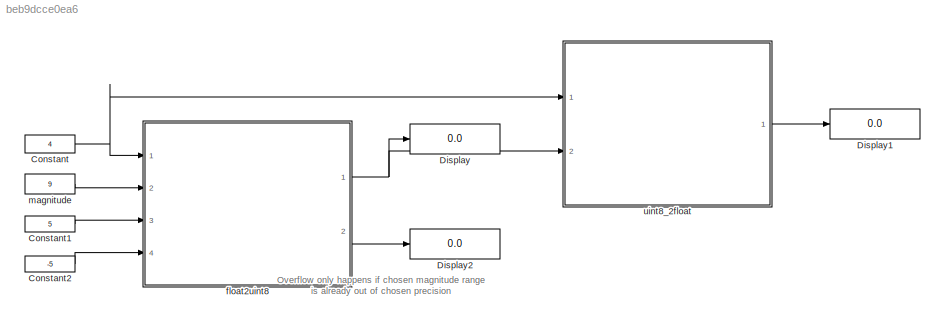
MODEL slx_beb9dcce0ea6
KIND model
CONFIG AbsTol = auto
CONFIG EnableMultiTasking = off
CONFIG FixedStep = auto
CONFIG MaxStep = auto
CONFIG MinStep = auto
CONFIG RelTol = 1e-3
CONFIG SampleTimeConstraint = Unconstrained
CONFIG Solver = FixedStepAuto
CONFIG SolverName = FixedStepAuto
CONFIG StartTime = 0.0
CONFIG StopTime = 10.0
WORKSPACE source: MAT-file member
WORKSPACE precision = 4
BLOCK [Constant] Constant
  Value = 4
BLOCK [Constant] Constant1
  Value = 5
BLOCK [Constant] Constant2
  Value = -5
BLOCK [Display] Display
  Decimation = 1
  Ports = [1]
BLOCK [Display] Display1
  Decimation = 1
  Ports = [1]
BLOCK [Display] Display2
  Decimation = 1
  Ports = [1]
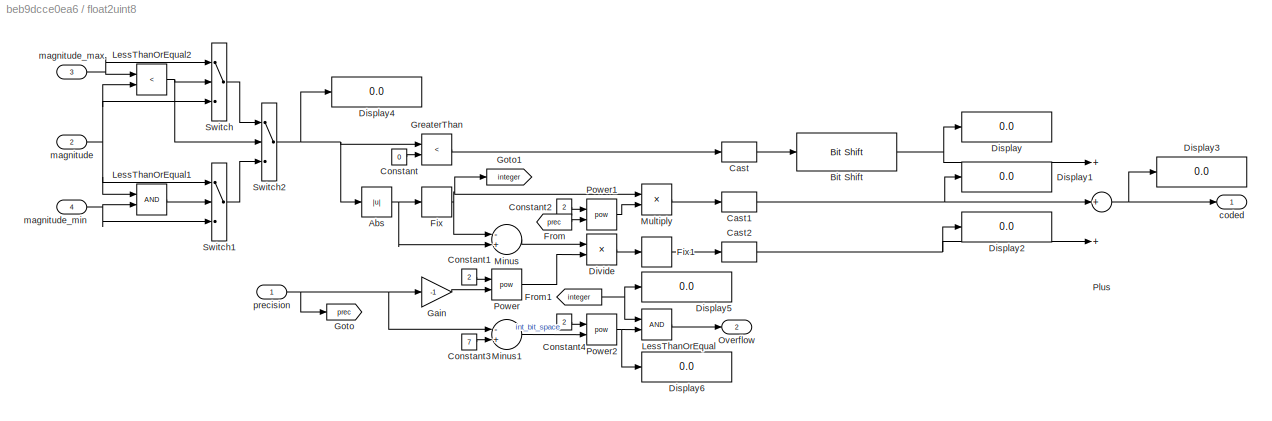
BLOCK [SubSystem] float2uint8
  Ports = [4, 2]
  RequestExecContextInheritance = off
BLOCK [Abs] float2uint8/Abs
  SaturateOnIntegerOverflow = off
BLOCK [Reference] float2uint8/Bit Shift  REF=hdlsllib/Logic and Bit
Operations/Bit Shift
  Ports = [1, 1]
  SourceBlock = hdlsllib/Logic and Bit\nOperations/Bit Shift
  SourceProductBaseCode = HD
  SourceProductName = HDL Coder
  SourceType = Bit Shift
BLOCK [DataTypeConversion] float2uint8/Cast
  OutDataTypeStr = uint8
  RndMeth = Floor
  SaturateOnIntegerOverflow = off
BLOCK [DataTypeConversion] float2uint8/Cast1
  OutDataTypeStr = uint8
  RndMeth = Floor
  SaturateOnIntegerOverflow = off
BLOCK [DataTypeConversion] float2uint8/Cast2
  OutDataTypeStr = uint8
  RndMeth = Floor
  SaturateOnIntegerOverflow = off
BLOCK [Constant] float2uint8/Constant
  Value = 0
BLOCK [Constant] float2uint8/Constant1
  Value = 2
BLOCK [Constant] float2uint8/Constant2
  Value = 2
BLOCK [Constant] float2uint8/Constant3
  Value = 7
BLOCK [Constant] float2uint8/Constant4
  Value = 2
BLOCK [Display] float2uint8/Display
  Decimation = 1
  Ports = [1]
BLOCK [Display] float2uint8/Display1
  Decimation = 1
  Ports = [1]
BLOCK [Display] float2uint8/Display2
  Decimation = 1
  Ports = [1]
BLOCK [Display] float2uint8/Display3
  Decimation = 1
  Ports = [1]
BLOCK [Display] float2uint8/Display4
  Decimation = 1
  Ports = [1]
BLOCK [Display] float2uint8/Display5
  Decimation = 1
  Ports = [1]
BLOCK [Display] float2uint8/Display6
  Decimation = 1
  Ports = [1]
BLOCK [Product] float2uint8/Divide
  InputSameDT = off
  Inputs = */
  OutDataTypeStr = Inherit: Inherit via internal rule
  Ports = [2, 1]
  RndMeth = Floor
  SaturateOnIntegerOverflow = off
BLOCK [Rounding] float2uint8/Fix
  Operator = fix
  Priority = 3
BLOCK [Rounding] float2uint8/Fix1
  Operator = fix
  Priority = 6
BLOCK [From] float2uint8/From
  GotoTag = prec
BLOCK [From] float2uint8/From1
  GotoTag = integer
BLOCK [Gain] float2uint8/Gain
  Gain = -1
  OutDataTypeStr = Inherit: Inherit via internal rule
  ParamDataTypeStr = Inherit: Inherit via internal rule
  SaturateOnIntegerOverflow = off
BLOCK [Goto] float2uint8/Goto
  GotoTag = prec
BLOCK [Goto] float2uint8/Goto1
  GotoTag = integer
BLOCK [RelationalOperator] float2uint8/GreaterThan
  InputSameDT = off
  Operator = <
  OutDataTypeStr = boolean
  Ports = [2, 1]
  Priority = 2
  RndMeth = Simplest
BLOCK [RelationalOperator] float2uint8/LessThanOrEqual
  InputSameDT = off
  OutDataTypeStr = boolean
  Ports = [2, 1]
  RndMeth = Simplest
BLOCK [RelationalOperator] float2uint8/LessThanOrEqual1
  InputSameDT = off
  OutDataTypeStr = boolean
  Ports = [2, 1]
  RndMeth = Simplest
BLOCK [RelationalOperator] float2uint8/LessThanOrEqual2
  InputSameDT = off
  Operator = <
  OutDataTypeStr = boolean
  Ports = [2, 1]
  RndMeth = Simplest
BLOCK [Sum] float2uint8/Minus
  InputSameDT = off
  Inputs = -+
  OutDataTypeStr = Inherit: Inherit via internal rule
  Ports = [2, 1]
  Priority = 4
  SaturateOnIntegerOverflow = off
BLOCK [Sum] float2uint8/Minus1
  InputSameDT = off
  Inputs = -+
  OutDataTypeStr = Inherit: Inherit via internal rule
  Ports = [2, 1]
  Priority = 4
  SaturateOnIntegerOverflow = off
BLOCK [Product] float2uint8/Multiply
  InputSameDT = off
  OutDataTypeStr = Inherit: Inherit via internal rule
  Ports = [2, 1]
  RndMeth = Floor
  SaturateOnIntegerOverflow = off
BLOCK [Outport] float2uint8/Overflow
  IconDisplay = Port number
  Port = 2
BLOCK [Sum] float2uint8/Plus
  InputSameDT = off
  Inputs = +++
  OutDataTypeStr = Inherit: Inherit via internal rule
  Ports = [3, 1]
  Priority = 10
  SaturateOnIntegerOverflow = off
BLOCK [Math] float2uint8/Power
  Operator = pow
  Ports = [2, 1]
  Priority = 5
BLOCK [Math] float2uint8/Power1
  Operator = pow
  Ports = [2, 1]
  Priority = 5
BLOCK [Math] float2uint8/Power2
  Operator = pow
  Ports = [2, 1]
  Priority = 5
BLOCK [Switch] float2uint8/Switch
  Criteria = u2 > Threshold
  InputSameDT = off
  SaturateOnIntegerOverflow = off
BLOCK [Switch] float2uint8/Switch1
  Criteria = u2 > Threshold
  InputSameDT = off
  SaturateOnIntegerOverflow = off
BLOCK [Switch] float2uint8/Switch2
  Criteria = u2 > Threshold
  InputSameDT = off
  SaturateOnIntegerOverflow = off
BLOCK [Outport] float2uint8/coded
  IconDisplay = Port number
BLOCK [Inport] float2uint8/magnitude
  IconDisplay = Port number
  Port = 2
BLOCK [Inport] float2uint8/magnitude_max
  IconDisplay = Port number
  Port = 3
BLOCK [Inport] float2uint8/magnitude_min
  IconDisplay = Port number
  Port = 4
BLOCK [Inport] float2uint8/precision
  IconDisplay = Port number
BLOCK [Constant] magnitude
  Value = 9
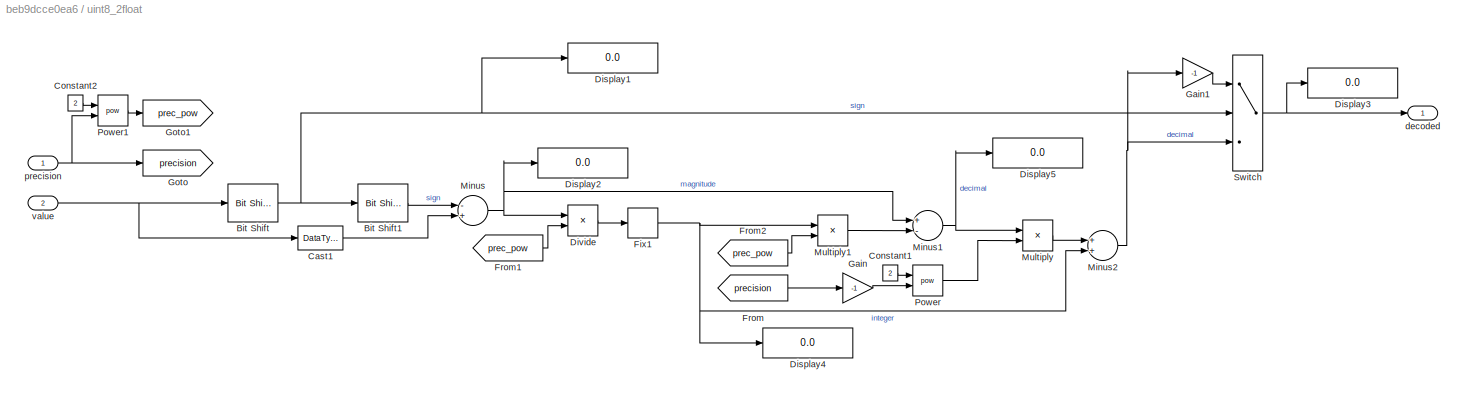
BLOCK [SubSystem] uint8_2float
  Ports = [2, 1]
  RequestExecContextInheritance = off
BLOCK [Reference] uint8_2float/Bit Shift  REF=hdlsllib/Logic and Bit
Operations/Bit Shift
  Ports = [1, 1]
  SourceBlock = hdlsllib/Logic and Bit\nOperations/Bit Shift
  SourceProductBaseCode = HD
  SourceProductName = HDL Coder
  SourceType = Bit Shift
BLOCK [Reference] uint8_2float/Bit Shift1  REF=hdlsllib/Logic and Bit
Operations/Bit Shift
  Ports = [1, 1]
  SourceBlock = hdlsllib/Logic and Bit\nOperations/Bit Shift
  SourceProductBaseCode = HD
  SourceProductName = HDL Coder
  SourceType = Bit Shift
BLOCK [DataTypeConversion] uint8_2float/Cast1
  OutDataTypeStr = double
  RndMeth = Floor
  SaturateOnIntegerOverflow = off
BLOCK [Constant] uint8_2float/Constant1
  Value = 2
BLOCK [Constant] uint8_2float/Constant2
  Value = 2
BLOCK [Display] uint8_2float/Display1
  Decimation = 1
  Ports = [1]
BLOCK [Display] uint8_2float/Display2
  Decimation = 1
  Ports = [1]
BLOCK [Display] uint8_2float/Display3
  Decimation = 1
  Ports = [1]
BLOCK [Display] uint8_2float/Display4
  Decimation = 1
  Ports = [1]
BLOCK [Display] uint8_2float/Display5
  Decimation = 1
  Ports = [1]
BLOCK [Product] uint8_2float/Divide
  InputSameDT = off
  Inputs = */
  OutDataTypeStr = Inherit: Inherit via internal rule
  Ports = [2, 1]
  RndMeth = Floor
  SaturateOnIntegerOverflow = off
BLOCK [Rounding] uint8_2float/Fix1
  Operator = fix
BLOCK [From] uint8_2float/From
  GotoTag = precision
BLOCK [From] uint8_2float/From1
  GotoTag = prec_pow
BLOCK [From] uint8_2float/From2
  GotoTag = prec_pow
BLOCK [Gain] uint8_2float/Gain
  Gain = -1
  OutDataTypeStr = Inherit: Inherit via internal rule
  ParamDataTypeStr = Inherit: Inherit via internal rule
  SaturateOnIntegerOverflow = off
BLOCK [Gain] uint8_2float/Gain1
  Gain = -1
  OutDataTypeStr = Inherit: Inherit via internal rule
  ParamDataTypeStr = Inherit: Inherit via internal rule
  SaturateOnIntegerOverflow = off
BLOCK [Goto] uint8_2float/Goto
  GotoTag = precision
BLOCK [Goto] uint8_2float/Goto1
  GotoTag = prec_pow
BLOCK [Sum] uint8_2float/Minus
  InputSameDT = off
  Inputs = -+
  OutDataTypeStr = Inherit: Inherit via internal rule
  Ports = [2, 1]
  SaturateOnIntegerOverflow = off
BLOCK [Sum] uint8_2float/Minus1
  InputSameDT = off
  Inputs = +-
  OutDataTypeStr = Inherit: Inherit via internal rule
  Ports = [2, 1]
  SaturateOnIntegerOverflow = off
BLOCK [Sum] uint8_2float/Minus2
  InputSameDT = off
  OutDataTypeStr = Inherit: Inherit via internal rule
  Ports = [2, 1]
  SaturateOnIntegerOverflow = off
BLOCK [Product] uint8_2float/Multiply
  InputSameDT = off
  OutDataTypeStr = Inherit: Inherit via internal rule
  Ports = [2, 1]
  RndMeth = Floor
  SaturateOnIntegerOverflow = off
BLOCK [Product] uint8_2float/Multiply1
  InputSameDT = off
  OutDataTypeStr = Inherit: Inherit via internal rule
  Ports = [2, 1]
  RndMeth = Floor
  SaturateOnIntegerOverflow = off
BLOCK [Math] uint8_2float/Power
  Operator = pow
  Ports = [2, 1]
  Priority = 5
BLOCK [Math] uint8_2float/Power1
  Operator = pow
  Ports = [2, 1]
  Priority = 5
BLOCK [Switch] uint8_2float/Switch
  Criteria = u2 > Threshold
  InputSameDT = off
  SaturateOnIntegerOverflow = off
BLOCK [Outport] uint8_2float/decoded
  IconDisplay = Port number
BLOCK [Inport] uint8_2float/precision
  IconDisplay = Port number
BLOCK [Inport] uint8_2float/value
  IconDisplay = Port number
  Port = 2
ANNOTATION (root): Overflow only happens if chosen magnitude range is already out of chosen precision
LINE Constant1:1 -> float2uint8:3
LINE Constant2:1 -> float2uint8:4
NET Constant:1 -> float2uint8:1, uint8_2float:1
NET float2uint8/Abs:1 -> float2uint8/Fix:1, float2uint8/Minus:2
NET float2uint8/Bit Shift:1 -> float2uint8/Display:1, float2uint8/Plus:1
NET float2uint8/Cast1:1 -> float2uint8/Display1:1, float2uint8/Plus:2
NET float2uint8/Cast2:1 -> float2uint8/Display2:1, float2uint8/Plus:3
LINE float2uint8/Cast:1 -> float2uint8/Bit Shift:1
LINE float2uint8/Constant1:1 -> float2uint8/Power:1
LINE float2uint8/Constant2:1 -> float2uint8/Power1:1
LINE float2uint8/Constant3:1 -> float2uint8/Minus1:2
LINE float2uint8/Constant4:1 -> float2uint8/Power2:1
LINE float2uint8/Constant:1 -> float2uint8/GreaterThan:2
LINE float2uint8/Divide:1 -> float2uint8/Fix1:1
LINE float2uint8/Fix1:1 -> float2uint8/Cast2:1
NET float2uint8/Fix:1 -> float2uint8/Goto1:1, float2uint8/Minus:1, float2uint8/Multiply:1
NET float2uint8/From1:1 -> float2uint8/Display5:1, float2uint8/LessThanOrEqual:1
LINE float2uint8/From:1 -> float2uint8/Power1:2
LINE float2uint8/Gain:1 -> float2uint8/Power:2
LINE float2uint8/GreaterThan:1 -> float2uint8/Cast:1
LINE float2uint8/LessThanOrEqual1:1 -> float2uint8/Switch1:2
NET float2uint8/LessThanOrEqual2:1 -> float2uint8/Switch2:2, float2uint8/Switch:2
LINE float2uint8/LessThanOrEqual:1 -> float2uint8/Overflow:1
LINE float2uint8/Minus1:1 -> float2uint8/Power2:2
LINE float2uint8/Minus:1 -> float2uint8/Divide:1
LINE float2uint8/Multiply:1 -> float2uint8/Cast1:1
NET float2uint8/Plus:1 -> float2uint8/Display3:1, float2uint8/coded:1
LINE float2uint8/Power1:1 -> float2uint8/Multiply:2
NET float2uint8/Power2:1 -> float2uint8/Display6:1, float2uint8/LessThanOrEqual:2
LINE float2uint8/Power:1 -> float2uint8/Divide:2
LINE float2uint8/Switch1:1 -> float2uint8/Switch2:3
NET float2uint8/Switch2:1 -> float2uint8/Abs:1, float2uint8/Display4:1, float2uint8/GreaterThan:1
LINE float2uint8/Switch:1 -> float2uint8/Switch2:1
NET float2uint8/magnitude:1 -> float2uint8/LessThanOrEqual1:1, float2uint8/LessThanOrEqual2:2, float2uint8/Switch1:1, float2uint8/Switch:3
NET float2uint8/magnitude_max:1 -> float2uint8/LessThanOrEqual2:1, float2uint8/Switch:1
NET float2uint8/magnitude_min:1 -> float2uint8/LessThanOrEqual1:2, float2uint8/Switch1:3
NET float2uint8/precision:1 -> float2uint8/Gain:1, float2uint8/Goto:1, float2uint8/Minus1:1
NET float2uint8:1 -> Display:1, uint8_2float:2
LINE float2uint8:2 -> Display2:1
LINE magnitude:1 -> float2uint8:2
LINE uint8_2float/Bit Shift1:1 -> uint8_2float/Minus:1
NET uint8_2float/Bit Shift:1 -> uint8_2float/Bit Shift1:1, uint8_2float/Display1:1, uint8_2float/Switch:2
LINE uint8_2float/Cast1:1 -> uint8_2float/Minus:2
LINE uint8_2float/Constant1:1 -> uint8_2float/Power:1
LINE uint8_2float/Constant2:1 -> uint8_2float/Power1:1
LINE uint8_2float/Divide:1 -> uint8_2float/Fix1:1
NET uint8_2float/Fix1:1 -> uint8_2float/Display4:1, uint8_2float/Minus2:2, uint8_2float/Multiply1:1
LINE uint8_2float/From1:1 -> uint8_2float/Divide:2
LINE uint8_2float/From2:1 -> uint8_2float/Multiply1:2
LINE uint8_2float/From:1 -> uint8_2float/Gain:1
LINE uint8_2float/Gain1:1 -> uint8_2float/Switch:1
LINE uint8_2float/Gain:1 -> uint8_2float/Power:2
NET uint8_2float/Minus1:1 -> uint8_2float/Display5:1, uint8_2float/Multiply:1
NET uint8_2float/Minus2:1 -> uint8_2float/Gain1:1, uint8_2float/Switch:3
NET uint8_2float/Minus:1 -> uint8_2float/Display2:1, uint8_2float/Divide:1, uint8_2float/Minus1:1
LINE uint8_2float/Multiply1:1 -> uint8_2float/Minus1:2
LINE uint8_2float/Multiply:1 -> uint8_2float/Minus2:1
LINE uint8_2float/Power1:1 -> uint8_2float/Goto1:1
LINE uint8_2float/Power:1 -> uint8_2float/Multiply:2
NET uint8_2float/Switch:1 -> uint8_2float/Display3:1, uint8_2float/decoded:1
NET uint8_2float/precision:1 -> uint8_2float/Goto:1, uint8_2float/Power1:2
NET uint8_2float/value:1 -> uint8_2float/Bit Shift:1, uint8_2float/Cast1:1
LINE uint8_2float:1 -> Display1:1
note: NET lines group one-source signal fan-out (src -> all destinations, sorted); 1:1 wires keep LINE
